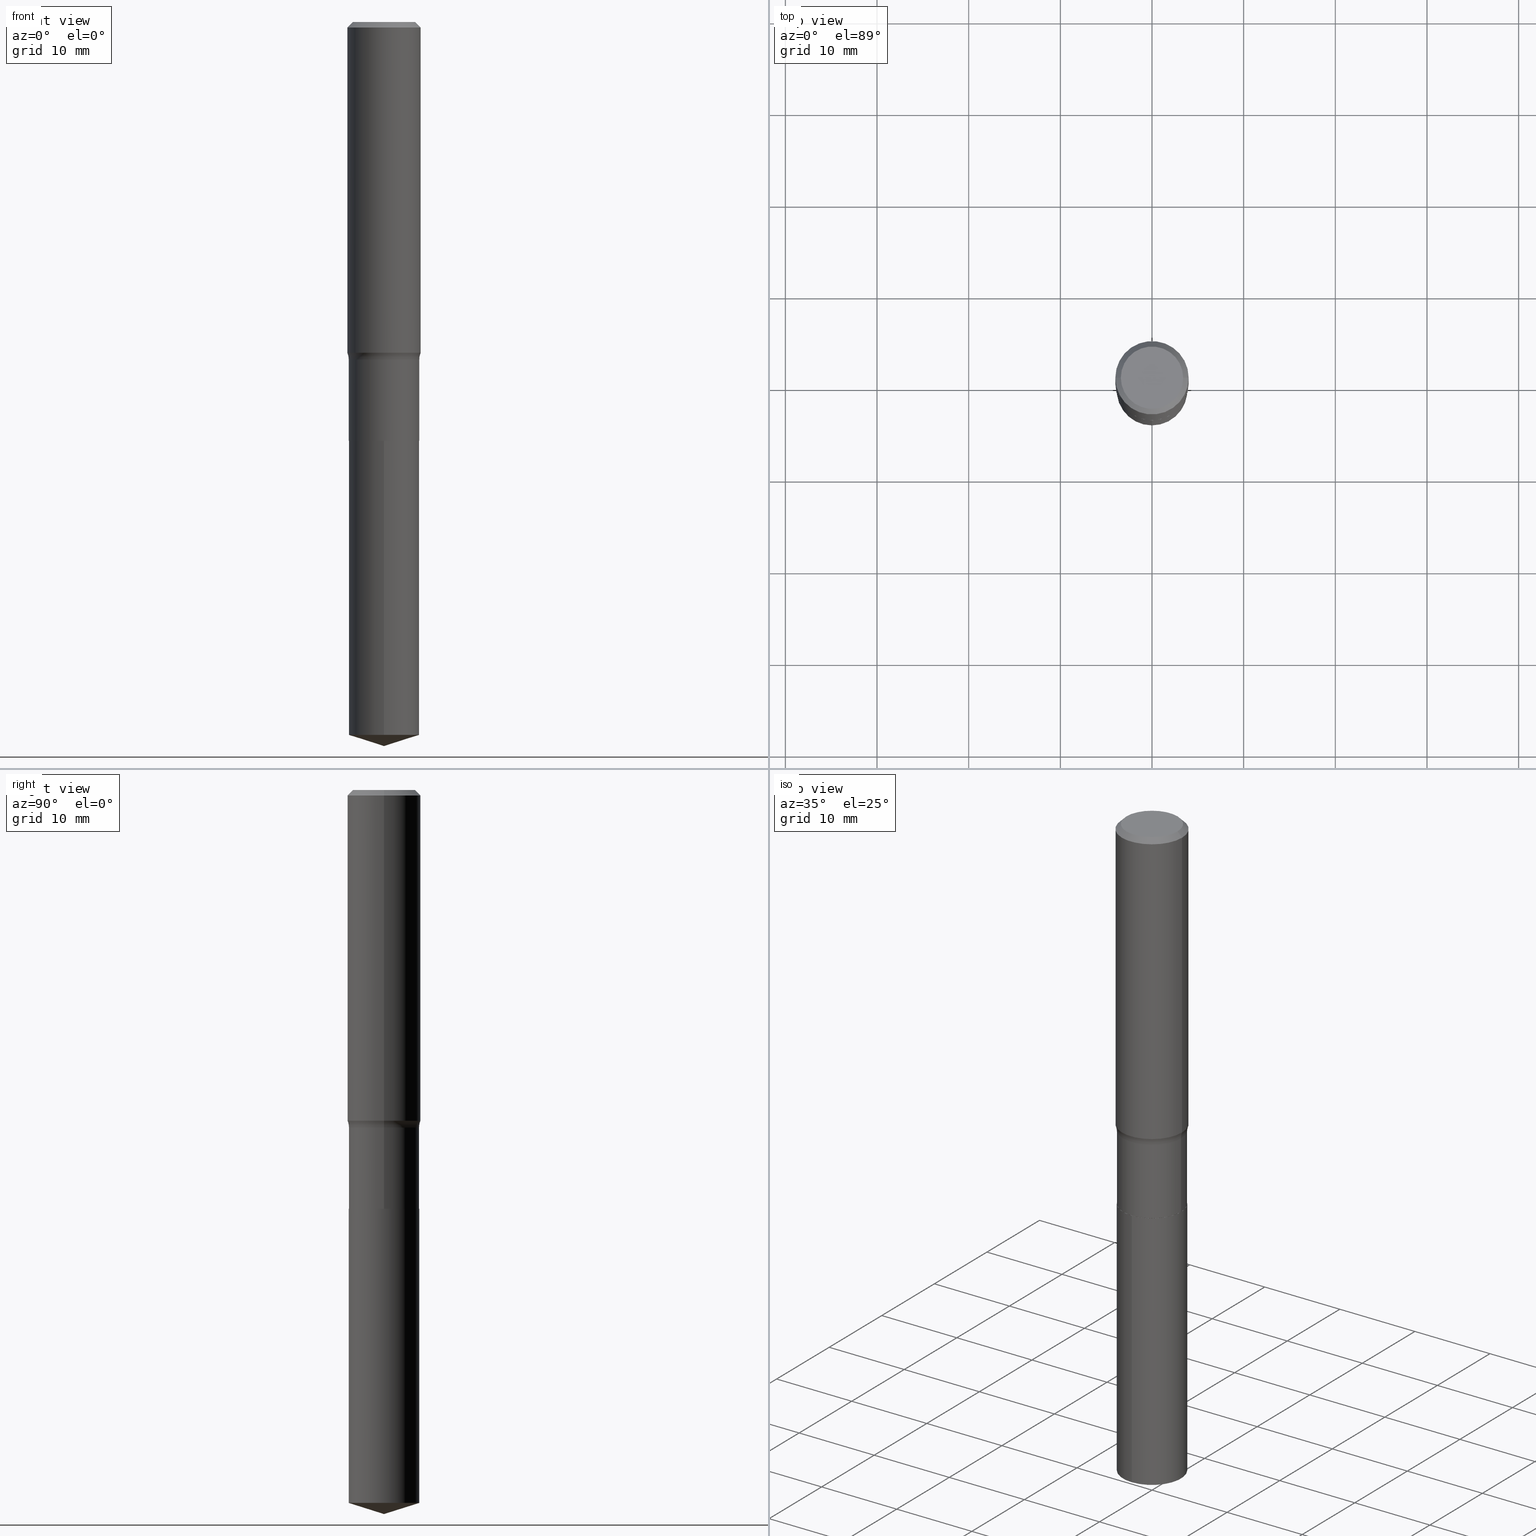
[diagram: canonical four-view strip — front | top / right | iso, engineering-drawing reading convention]
A machine part, canonical four-view strip (front | top / right | iso — engineering-drawing reading convention). The complete STEP part file that produces these views, byte-faithful:
ISO-10303-21;
HEADER;
FILE_DESCRIPTION (( 'STEP AP203' ),
    '1' );
FILE_NAME ('63765.STEP',
    '2024-04-19T15:08:38',
    ( '' ),
    ( '' ),
    'SwSTEP 2.0',
    'SolidWorks 2023',
    '' );
FILE_SCHEMA (( 'CONFIG_CONTROL_DESIGN' ));
ENDSEC;

DATA;
#1 =( NAMED_UNIT ( * ) PLANE_ANGLE_UNIT ( ) SI_UNIT ( $, .RADIAN. ) );
#2 = PERSON_AND_ORGANIZATION_ROLE ( 'creator' ) ;
#3 = AXIS2_PLACEMENT_3D ( 'NONE', #71, #371, #33 ) ;
#4 = ORIENTED_EDGE ( 'NONE', *, *, #314, .T. ) ;
#5 = APPROVAL_STATUS ( 'not_yet_approved' ) ;
#6 = DIRECTION ( 'NONE',  ( 0.7071067811865451302, -7.319954787623248157E-15, -0.7071067811865499042 ) ) ;
#7 = SECURITY_CLASSIFICATION_LEVEL ( 'unclassified' ) ;
#8 = CARTESIAN_POINT ( 'NONE',  ( 1.076827516044506507E-15, 0.1515499999999936898, -1.799100000000000588 ) ) ;
#9 = DATE_TIME_ROLE ( 'classification_date' ) ;
#10 = CARTESIAN_POINT ( 'NONE',  ( 0.1575000000000000011, -1.163014681279185964E-15, -0.02362500000000014588 ) ) ;
#11 = AXIS2_PLACEMENT_3D ( 'NONE', #79, #376, #325 ) ;
#12 = APPROVAL_PERSON_ORGANIZATION ( #123, #61, #238 ) ;
#13 = APPROVAL_ROLE ( '' ) ;
#14 = VERTEX_POINT ( 'NONE', #303 ) ;
#15 = FACE_OUTER_BOUND ( 'NONE', #492, .T. ) ;
#16 = EDGE_CURVE ( 'NONE', #251, #132, #208, .T. ) ;
#17 = FACE_OUTER_BOUND ( 'NONE', #267, .T. ) ;
#18 = FACE_OUTER_BOUND ( 'NONE', #135, .T. ) ;
#19 = CIRCLE ( 'NONE', #160, 0.07799999999999999989 ) ;
#20 = EDGE_CURVE ( 'NONE', #58, #134, #199, .T. ) ;
#21 = ORIENTED_EDGE ( 'NONE', *, *, #354, .F. ) ;
#22 = AXIS2_PLACEMENT_3D ( 'NONE', #220, #488, #327 ) ;
#23 = EDGE_CURVE ( 'NONE', #139, #328, #340, .T. ) ;
#24 = ORIENTED_EDGE ( 'NONE', *, *, #170, .T. ) ;
#25 = DIRECTION ( 'NONE',  ( 1.000000000000000000, -6.982962677686265922E-15, 0.000000000000000000 ) ) ;
#26 = DIRECTION ( 'NONE',  ( -2.445468806185136597E-29, 3.491481338843145583E-15, 1.000000000000000000 ) ) ;
#27 = VERTEX_POINT ( 'NONE', #392 ) ;
#28 = ORIENTED_EDGE ( 'NONE', *, *, #16, .F. ) ;
#29 = ORIENTED_EDGE ( 'NONE', *, *, #314, .F. ) ;
#30 = DIRECTION ( 'NONE',  ( -6.982962677686266711E-15, -1.000000000000000000, 3.491481338843145583E-15 ) ) ;
#31 = CARTESIAN_POINT ( 'NONE',  ( 4.398420194804586591E-29, -6.279778336043281129E-15, -1.798599999999999977 ) ) ;
#32 = CC_DESIGN_PERSON_AND_ORGANIZATION_ASSIGNMENT ( #417, #197, ( #68 ) ) ;
#33 = DIRECTION ( 'NONE',  ( 1.000000000000000000, -6.982962677686267499E-15, 4.876176775795936353E-29 ) ) ;
#34 = DIRECTION ( 'NONE',  ( -6.982962677686266711E-15, -1.000000000000000000, 3.500519750498737170E-15 ) ) ;
#35 = EDGE_CURVE ( 'NONE', #153, #58, #457, .T. ) ;
#36 = EDGE_CURVE ( 'NONE', #386, #27, #37, .T. ) ;
#37 = CIRCLE ( 'NONE', #159, 0.07799999999999999989 ) ;
#38 = ADVANCED_FACE ( 'NONE', ( #311 ), #280, .T. ) ;
#39 = DIRECTION ( 'NONE',  ( 1.000000000000000000, -6.982962677686265922E-15, 4.876176775795935793E-29 ) ) ;
#40 = FACE_OUTER_BOUND ( 'NONE', #173, .T. ) ;
#41 = ORIENTED_EDGE ( 'NONE', *, *, #255, .F. ) ;
#42 = APPROVAL_STATUS ( 'not_yet_approved' ) ;
#43 = ORIENTED_EDGE ( 'NONE', *, *, #170, .F. ) ;
#44 = DIRECTION ( 'NONE',  ( 0.000000000000000000, 0.000000000000000000, 1.000000000000000000 ) ) ;
#45 = VECTOR ( 'NONE', #161, 39.37007874015748143 ) ;
#46 = EDGE_LOOP ( 'NONE', ( #489, #4, #290, #41 ) ) ;
#47 = DIRECTION ( 'NONE',  ( -2.445468806185136597E-29, 3.491481338843145583E-15, 1.000000000000000000 ) ) ;
#48 = COORDINATED_UNIVERSAL_TIME_OFFSET ( 5, 0, .BEHIND. ) ;
#49 = DIRECTION ( 'NONE',  ( 0.7071067811864267805, -2.468850131080992517E-15, 0.7071067811866682540 ) ) ;
#50 = EDGE_CURVE ( 'NONE', #286, #58, #90, .T. ) ;
#51 = APPROVAL_DATE_TIME ( #397, #367 ) ;
#52 = ORIENTED_EDGE ( 'NONE', *, *, #342, .T. ) ;
#53 = VECTOR ( 'NONE', #459, 39.37007874015748143 ) ;
#54 = CC_DESIGN_DATE_AND_TIME_ASSIGNMENT ( #276, #9, ( #352 ) ) ;
#55 = ORIENTED_EDGE ( 'NONE', *, *, #225, .F. ) ;
#56 = VERTEX_POINT ( 'NONE', #117 ) ;
#57 = CARTESIAN_POINT ( 'NONE',  ( 5.777420054612421104E-31, -8.248624663016984002E-17, -0.02362500000000014588 ) ) ;
#58 = VERTEX_POINT ( 'NONE', #232 ) ;
#59 = ADVANCED_FACE ( 'NONE', ( #15 ), #405, .F. ) ;
#60 = DIRECTION ( 'NONE',  ( -2.445468806185136597E-29, 3.491481338843145583E-15, 1.000000000000000000 ) ) ;
#61 = APPROVAL ( #5, 'UNSPECIFIED' ) ;
#62 = CARTESIAN_POINT ( 'NONE',  ( 3.474082587019340908E-29, -4.960069206975464196E-15, -1.420620282799195833 ) ) ;
#63 = CLOSED_SHELL ( 'NONE', ( #169, #350, #258, #247, #382, #442, #59, #241, #103, #347, #309, #260 ) ) ;
#64 = ORIENTED_EDGE ( 'NONE', *, *, #255, .T. ) ;
#65 = PLANE ( 'NONE',  #264 ) ;
#66 = CARTESIAN_POINT ( 'NONE',  ( 4.399642929207679953E-29, -6.281524076712703421E-15, -1.799100000000000144 ) ) ;
#67 = LINE ( 'NONE', #448, #406 ) ;
#68 = PRODUCT_DEFINITION ( 'UNKNOWN', '', #415, #274 ) ;
#69 = AXIS2_PLACEMENT_3D ( 'NONE', #145, #295, #298 ) ;
#70 = MANIFOLD_SOLID_BREP ( 'Body-Move/Copy2[1]', #411 ) ;
#71 = CARTESIAN_POINT ( 'NONE',  ( 0.000000000000000000, 0.000000000000000000, 0.000000000000000000 ) ) ;
#72 = MANIFOLD_SOLID_BREP ( 'Body-Move/Copy2[2]', #63 ) ;
#73 = ORIENTED_EDGE ( 'NONE', *, *, #144, .F. ) ;
#74 = LINE ( 'NONE', #404, #128 ) ;
#75 = EDGE_CURVE ( 'NONE', #386, #134, #198, .T. ) ;
#76 = FACE_OUTER_BOUND ( 'NONE', #316, .T. ) ;
#77 = CIRCLE ( 'NONE', #22, 0.1515499999999999903 ) ;
#78 = LOCAL_TIME ( 11, 8, 38.00000000000000000, #149 ) ;
#79 = CARTESIAN_POINT ( 'NONE',  ( -5.014852121625167883E-47, 7.159879756154482429E-33, 2.050671065172242981E-18 ) ) ;
#80 = VERTEX_POINT ( 'NONE', #113 ) ;
#81 = CARTESIAN_POINT ( 'NONE',  ( 7.605921269896744962E-29, -1.085917272384048373E-14, -3.110199999999999854 ) ) ;
#82 = DATE_TIME_ROLE ( 'creation_date' ) ;
#83 = CARTESIAN_POINT ( 'NONE',  ( -0.2295499999999999485, -3.433342832054672810E-15, -1.450499999999999901 ) ) ;
#84 = EDGE_CURVE ( 'NONE', #80, #27, #393, .T. ) ;
#85 = AXIS2_PLACEMENT_3D ( 'NONE', #345, #44, #119 ) ;
#86 = DIRECTION ( 'NONE',  ( 1.000000000000000000, -6.982962677686265922E-15, 0.000000000000000000 ) ) ;
#87 = CALENDAR_DATE ( 2024, 19, 4 ) ;
#88 = DIRECTION ( 'NONE',  ( -1.000000000000000000, 7.105427357601005014E-15, 0.000000000000000000 ) ) ;
#89 = EDGE_CURVE ( 'NONE', #286, #386, #118, .T. ) ;
#90 = LINE ( 'NONE', #236, #384 ) ;
#91 = CARTESIAN_POINT ( 'NONE',  ( 0.1338749999999999940, -1.040731925365424925E-15, 4.101342130351393887E-18 ) ) ;
#92 = COORDINATED_UNIVERSAL_TIME_OFFSET ( 5, 0, .BEHIND. ) ;
#93 = CARTESIAN_POINT ( 'NONE',  ( 7.605752278704311701E-29, -1.085941262519473486E-14, -3.110199999999999854 ) ) ;
#94 = DIRECTION ( 'NONE',  ( 1.000000000000000000, -6.982962677686265133E-15, 0.000000000000000000 ) ) ;
#95 = ORIENTED_EDGE ( 'NONE', *, *, #416, .T. ) ;
#96 = DIRECTION ( 'NONE',  ( -2.445468806185136597E-29, 3.491481338843145583E-15, 1.000000000000000000 ) ) ;
#97 = VECTOR ( 'NONE', #239, 39.37007874015748854 ) ;
#98 = EDGE_LOOP ( 'NONE', ( #477, #167, #95, #185 ) ) ;
#99 = VERTEX_POINT ( 'NONE', #462 ) ;
#100 = AXIS2_PLACEMENT_3D ( 'NONE', #445, #379, #184 ) ;
#101 = PERSON ( 'UNSPECIFIED', 'UNSPECIFIED', 'UNSPECIFIED', ('UNSPECIFIED'), ('UNSPECIFIED'), ('UNSPECIFIED') ) ;
#102 = FACE_OUTER_BOUND ( 'NONE', #422, .T. ) ;
#103 = ADVANCED_FACE ( 'NONE', ( #383 ), #175, .T. ) ;
#104 = FACE_OUTER_BOUND ( 'NONE', #363, .T. ) ;
#105 = DIRECTION ( 'NONE',  ( -1.000000000000000000, 6.982962677686265922E-15, 0.000000000000000000 ) ) ;
#106 = ORIENTED_EDGE ( 'NONE', *, *, #89, .F. ) ;
#107 = DIRECTION ( 'NONE',  ( -6.982962677686265922E-15, -1.000000000000000000, 3.605210153301568306E-15 ) ) ;
#108 = EDGE_LOOP ( 'NONE', ( #29, #440, #64, #212 ) ) ;
#109 = CARTESIAN_POINT ( 'NONE',  ( 7.605752278704311701E-29, -1.085941262519473170E-14, -3.110199999999999854 ) ) ;
#110 = CARTESIAN_POINT ( 'NONE',  ( -1.058267993803309547E-15, -0.1515500000000062630, -1.799099999999999477 ) ) ;
#111 = AXIS2_PLACEMENT_3D ( 'NONE', #450, #491, #483 ) ;
#112 = COORDINATED_UNIVERSAL_TIME_OFFSET ( 5, 0, .BEHIND. ) ;
#113 = CARTESIAN_POINT ( 'NONE',  ( 0.1515499999999999625, -6.122661675795335552E-15, -1.450499999999999901 ) ) ;
#114 = ORIENTED_EDGE ( 'NONE', *, *, #231, .T. ) ;
#115 = DIRECTION ( 'NONE',  ( -2.445468806185136597E-29, 3.491481338843145583E-15, 1.000000000000000000 ) ) ;
#116 = PERSON_AND_ORGANIZATION_ROLE ( 'design_supplier' ) ;
#117 = CARTESIAN_POINT ( 'NONE',  ( -0.1338749999999999940, 9.760872517903331886E-16, 4.101342130337804525E-18 ) ) ;
#118 = CIRCLE ( 'NONE', #368, 0.1575000000000001954 ) ;
#119 = DIRECTION ( 'NONE',  ( 1.000000000000000000, 0.000000000000000000, 0.000000000000000000 ) ) ;
#120 = APPROVAL_PERSON_ORGANIZATION ( #195, #233, #343 ) ;
#121 = CARTESIAN_POINT ( 'NONE',  ( 5.777420054612421104E-31, -8.248624663016984002E-17, -0.02362500000000014588 ) ) ;
#122 = EDGE_CURVE ( 'NONE', #56, #153, #452, .T. ) ;
#123 = PERSON_AND_ORGANIZATION ( #101, #235 ) ;
#124 = CARTESIAN_POINT ( 'NONE',  ( 0.1510499999999999898, -7.336300589177213743E-15, -1.799100000000000144 ) ) ;
#125 = CYLINDRICAL_SURFACE ( 'NONE', #308, 0.1575000000000000844 ) ;
#126 = EDGE_LOOP ( 'NONE', ( #473, #414, #129, #320 ) ) ;
#127 = DIRECTION ( 'NONE',  ( 1.000000000000000000, -6.982962677686266711E-15, 4.876170806578254279E-29 ) ) ;
#128 = VECTOR ( 'NONE', #256, 39.37007874015748143 ) ;
#129 = ORIENTED_EDGE ( 'NONE', *, *, #20, .F. ) ;
#130 = PERSON_AND_ORGANIZATION ( #101, #235 ) ;
#131 = CARTESIAN_POINT ( 'NONE',  ( 0.1515499999999999625, -1.058267993803353526E-15, 7.389845903718739567E-30 ) ) ;
#132 = VERTEX_POINT ( 'NONE', #8 ) ;
#133 = CYLINDRICAL_SURFACE ( 'NONE', #460, 0.1575000000000000844 ) ;
#134 = VERTEX_POINT ( 'NONE', #390 ) ;
#135 = EDGE_LOOP ( 'NONE', ( #365, #334, #177, #43 ) ) ;
#136 = FACE_OUTER_BOUND ( 'NONE', #219, .T. ) ;
#137 = CIRCLE ( 'NONE', #100, 0.1515499999999999903 ) ;
#138 = LOCAL_TIME ( 11, 8, 38.00000000000000000, #48 ) ;
#139 = VERTEX_POINT ( 'NONE', #124 ) ;
#140 = EDGE_CURVE ( 'NONE', #246, #99, #277, .T. ) ;
#141 = DIRECTION ( 'NONE',  ( -2.445422248956437479E-29, 3.491548011444515616E-15, 1.000000000000000000 ) ) ;
#142 = CARTESIAN_POINT ( 'NONE',  ( 7.488985128861653082E-29, -1.069245418028746689E-14, -3.062416468545390291 ) ) ;
#143 = EDGE_CURVE ( 'NONE', #153, #56, #431, .T. ) ;
#144 = EDGE_CURVE ( 'NONE', #56, #134, #366, .T. ) ;
#145 = CARTESIAN_POINT ( 'NONE',  ( 3.547152503371540530E-29, -5.064393681991982224E-15, -1.450499999999999901 ) ) ;
#146 = CYLINDRICAL_SURFACE ( 'NONE', #3, 0.1515499999999999625 ) ;
#147 = VERTEX_POINT ( 'NONE', #288 ) ;
#148 = CYLINDRICAL_SURFACE ( 'NONE', #152, 0.1515499999999999903 ) ;
#149 = COORDINATED_UNIVERSAL_TIME_OFFSET ( 5, 0, .BEHIND. ) ;
#150 = ORIENTED_EDGE ( 'NONE', *, *, #143, .T. ) ;
#151 = ADVANCED_FACE ( 'NONE', ( #17 ), #474, .F. ) ;
#152 = AXIS2_PLACEMENT_3D ( 'NONE', #412, #254, #293 ) ;
#153 = VERTEX_POINT ( 'NONE', #91 ) ;
#154 = APPROVAL_DATE_TIME ( #420, #233 ) ;
#155 = CARTESIAN_POINT ( 'NONE',  ( 4.399642929207679392E-29, -6.281524076712702632E-15, -1.799099999999999921 ) ) ;
#156 = PERSON_AND_ORGANIZATION ( #101, #235 ) ;
#157 = EDGE_CURVE ( 'NONE', #286, #80, #19, .T. ) ;
#158 = DIRECTION ( 'NONE',  ( 7.105427357601001859E-15, 1.000000000000000000, -3.491481338843145583E-15 ) ) ;
#159 = AXIS2_PLACEMENT_3D ( 'NONE', #83, #158, #88 ) ;
#160 = AXIS2_PLACEMENT_3D ( 'NONE', #433, #30, #364 ) ;
#161 = DIRECTION ( 'NONE',  ( -0.7071067811864267805, 7.493145998869918709E-15, 0.7071067811866682540 ) ) ;
#162 = CC_DESIGN_APPROVAL ( #233, ( #68 ) ) ;
#163 = SHAPE_DEFINITION_REPRESENTATION ( #463, #243 ) ;
#164 = CARTESIAN_POINT ( 'NONE',  ( 3.547152503371540530E-29, -5.064393681991982224E-15, -1.450499999999999901 ) ) ;
#165 = DIRECTION ( 'NONE',  ( -2.445468806185136597E-29, 3.491481338843145583E-15, 1.000000000000000000 ) ) ;
#166 = LINE ( 'NONE', #131, #400 ) ;
#167 = ORIENTED_EDGE ( 'NONE', *, *, #259, .T. ) ;
#168 = FACE_OUTER_BOUND ( 'NONE', #317, .T. ) ;
#169 = ADVANCED_FACE ( 'NONE', ( #136 ), #487, .T. ) ;
#170 = EDGE_CURVE ( 'NONE', #134, #58, #301, .T. ) ;
#171 = DIRECTION ( 'NONE',  ( 1.000000000000000000, -6.982962677686265922E-15, 0.000000000000000000 ) ) ;
#172 = ORIENTED_EDGE ( 'NONE', *, *, #35, .F. ) ;
#173 = EDGE_LOOP ( 'NONE', ( #484, #216, #186 ) ) ;
#174 = CARTESIAN_POINT ( 'NONE',  ( -1.058267993803309547E-15, -0.1515500000000062630, -1.799099999999999477 ) ) ;
#175 = CONICAL_SURFACE ( 'NONE', #307, 0.1575000000000000011, 0.7853981633974449483 ) ;
#176 = AXIS2_PLACEMENT_3D ( 'NONE', #31, #407, #485 ) ;
#177 = ORIENTED_EDGE ( 'NONE', *, *, #50, .T. ) ;
#178 = DIRECTION ( 'NONE',  ( 2.445468806185136597E-29, -3.491481338843145583E-15, -1.000000000000000000 ) ) ;
#179 = ORIENTED_EDGE ( 'NONE', *, *, #23, .T. ) ;
#180 = CARTESIAN_POINT ( 'NONE',  ( 0.1515499999999999903, -7.338046329846634457E-15, -1.798599999999999977 ) ) ;
#181 = DIRECTION ( 'NONE',  ( -2.445422248956437479E-29, 3.491548011444515616E-15, 1.000000000000000000 ) ) ;
#182 = AXIS2_PLACEMENT_3D ( 'NONE', #121, #115, #381 ) ;
#183 = VECTOR ( 'NONE', #329, 39.37007874015748143 ) ;
#184 = DIRECTION ( 'NONE',  ( -6.982962677686265922E-15, -1.000000000000000000, 3.605210153301568306E-15 ) ) ;
#185 = ORIENTED_EDGE ( 'NONE', *, *, #342, .F. ) ;
#186 = ORIENTED_EDGE ( 'NONE', *, *, #259, .F. ) ;
#187 = ORIENTED_EDGE ( 'NONE', *, *, #466, .T. ) ;
#188 = CALENDAR_DATE ( 2024, 19, 4 ) ;
#189 = CARTESIAN_POINT ( 'NONE',  ( 0.1510499999999999898, -7.336300589177213743E-15, -1.799100000000000144 ) ) ;
#190 = AXIS2_PLACEMENT_3D ( 'NONE', #418, #196, #346 ) ;
#191 = AXIS2_PLACEMENT_3D ( 'NONE', #476, #96, #249 ) ;
#192 = APPLICATION_PROTOCOL_DEFINITION ( 'international standard', 'config_control_design', 1994, #362 ) ;
#193 = CARTESIAN_POINT ( 'NONE',  ( -0.1575000000000000844, 1.119104808822158392E-15, -7.747322767151481189E-30 ) ) ;
#194 = CC_DESIGN_PERSON_AND_ORGANIZATION_ASSIGNMENT ( #265, #2, ( #415 ) ) ;
#195 = PERSON_AND_ORGANIZATION ( #101, #235 ) ;
#196 = DIRECTION ( 'NONE',  ( -2.445468806185136597E-29, 3.491481338843145583E-15, 1.000000000000000000 ) ) ;
#197 = PERSON_AND_ORGANIZATION_ROLE ( 'creator' ) ;
#198 = LINE ( 'NONE', #193, #53 ) ;
#199 = CIRCLE ( 'NONE', #182, 0.1575000000000000011 ) ;
#200 = AXIS2_PLACEMENT_3D ( 'NONE', #62, #60, #171 ) ;
#201 = APPROVAL_PERSON_ORGANIZATION ( #130, #367, #13 ) ;
#202 = CARTESIAN_POINT ( 'NONE',  ( 3.474082587019340908E-29, -4.960069206975464196E-15, -1.420620282799195833 ) ) ;
#203 = ORIENTED_EDGE ( 'NONE', *, *, #437, .T. ) ;
#204 = DIRECTION ( 'NONE',  ( -2.445468806185136597E-29, 3.491481338843145583E-15, 1.000000000000000000 ) ) ;
#205 = PRODUCT_RELATED_PRODUCT_CATEGORY ( 'detail', '', ( #472 ) ) ;
#206 = CARTESIAN_POINT ( 'NONE',  ( 4.399642929207679953E-29, -6.281524076712703421E-15, -1.799100000000000144 ) ) ;
#207 = ORIENTED_EDGE ( 'NONE', *, *, #490, .T. ) ;
#208 = CIRCLE ( 'NONE', #375, 0.1515499999999999903 ) ;
#209 = FACE_OUTER_BOUND ( 'NONE', #126, .T. ) ;
#210 = EDGE_CURVE ( 'NONE', #358, #139, #333, .T. ) ;
#211 = CARTESIAN_POINT ( 'NONE',  ( 2.127525226973809493E-29, -9.535325947220068579E-15, -1.799099999999999921 ) ) ;
#212 = ORIENTED_EDGE ( 'NONE', *, *, #466, .F. ) ;
#213 = DIRECTION ( 'NONE',  ( -2.438088387897960049E-29, 3.491481338843145188E-15, 1.000000000000000000 ) ) ;
#214 = EDGE_LOOP ( 'NONE', ( #361, #203, #28, #221 ) ) ;
#215 = PLANE ( 'NONE',  #11 ) ;
#216 = ORIENTED_EDGE ( 'NONE', *, *, #482, .T. ) ;
#217 = CIRCLE ( 'NONE', #69, 0.1515499999999999625 ) ;
#218 = FACE_OUTER_BOUND ( 'NONE', #214, .T. ) ;
#219 = EDGE_LOOP ( 'NONE', ( #114, #207, #435, #285 ) ) ;
#220 = CARTESIAN_POINT ( 'NONE',  ( 4.398420194804586591E-29, -6.279778336043281129E-15, -1.798599999999999977 ) ) ;
#221 = ORIENTED_EDGE ( 'NONE', *, *, #416, .F. ) ;
#222 = CARTESIAN_POINT ( 'NONE',  ( -8.867063045453348225E-28, 1.266032274610932549E-13, 36.25987874015748247 ) ) ;
#223 = VECTOR ( 'NONE', #318, 39.37007874015748143 ) ;
#224 = AXIS2_PLACEMENT_3D ( 'NONE', #471, #252, #284 ) ;
#225 = EDGE_CURVE ( 'NONE', #386, #286, #443, .T. ) ;
#226 = LOCAL_TIME ( 11, 8, 38.00000000000000000, #339 ) ;
#227 = DIRECTION ( 'NONE',  ( -2.445468806185136877E-29, 3.491481338843145188E-15, 1.000000000000000000 ) ) ;
#228 = ORIENTED_EDGE ( 'NONE', *, *, #35, .T. ) ;
#229 = ORIENTED_EDGE ( 'NONE', *, *, #122, .F. ) ;
#230 = PERSON_AND_ORGANIZATION ( #101, #235 ) ;
#231 = EDGE_CURVE ( 'NONE', #139, #358, #250, .T. ) ;
#232 = CARTESIAN_POINT ( 'NONE',  ( 0.1575000000000000011, -1.182302868365756679E-15, -0.02362500000000014588 ) ) ;
#233 = APPROVAL ( #42, 'UNSPECIFIED' ) ;
#234 = AXIS2_PLACEMENT_3D ( 'NONE', #355, #395, #430 ) ;
#235 = ORGANIZATION ( 'UNSPECIFIED', 'UNSPECIFIED', '' ) ;
#236 = CARTESIAN_POINT ( 'NONE',  ( 0.1575000000000000844, -1.099816621735587677E-15, 7.679978421878603638E-30 ) ) ;
#237 = CARTESIAN_POINT ( 'NONE',  ( 3.547152503371540530E-29, -5.064393681991982224E-15, -1.450499999999999901 ) ) ;
#238 = APPROVAL_ROLE ( '' ) ;
#239 = DIRECTION ( 'NONE',  ( 6.776566513254251038E-15, 0.9537169507482280428, 0.3007057995042697329 ) ) ;
#240 = AXIS2_PLACEMENT_3D ( 'NONE', #313, #357, #315 ) ;
#241 = ADVANCED_FACE ( 'NONE', ( #18 ), #133, .T. ) ;
#242 = CARTESIAN_POINT ( 'NONE',  ( -0.1575000000000000011, 1.017330375105417098E-15, -0.02362500000000014588 ) ) ;
#243 = ADVANCED_BREP_SHAPE_REPRESENTATION ( '63765', ( #70, #72, #85 ), #447 ) ;
#244 = FACE_OUTER_BOUND ( 'NONE', #429, .T. ) ;
#245 = DIRECTION ( 'NONE',  ( -2.445468806185136597E-29, 3.491481338843145583E-15, 1.000000000000000000 ) ) ;
#246 = VERTEX_POINT ( 'NONE', #93 ) ;
#247 = ADVANCED_FACE ( 'NONE', ( #244 ), #385, .F. ) ;
#248 = CALENDAR_DATE ( 2024, 19, 4 ) ;
#249 = DIRECTION ( 'NONE',  ( 1.000000000000000000, -6.982962677686265133E-15, 0.000000000000000000 ) ) ;
#250 = CIRCLE ( 'NONE', #287, 0.1510499999999999898 ) ;
#251 = VERTEX_POINT ( 'NONE', #174 ) ;
#252 = DIRECTION ( 'NONE',  ( -2.445468806185136597E-29, 3.491481338843145583E-15, 1.000000000000000000 ) ) ;
#253 = LINE ( 'NONE', #110, #183 ) ;
#254 = DIRECTION ( 'NONE',  ( -2.445422248956437479E-29, 3.491548011444515616E-15, 1.000000000000000000 ) ) ;
#255 = EDGE_CURVE ( 'NONE', #328, #80, #166, .T. ) ;
#256 = DIRECTION ( 'NONE',  ( -2.445422248956437198E-29, 3.491548011444515221E-15, 1.000000000000000000 ) ) ;
#257 = DIRECTION ( 'NONE',  ( -6.659769872151625778E-15, -0.9537169507482258224, 0.3007057995042763388 ) ) ;
#258 = ADVANCED_FACE ( 'NONE', ( #209 ), #125, .T. ) ;
#259 = EDGE_CURVE ( 'NONE', #99, #147, #324, .T. ) ;
#260 = ADVANCED_FACE ( 'NONE', ( #168 ), #273, .T. ) ;
#261 = DIRECTION ( 'NONE',  ( -6.982962677686265922E-15, -1.000000000000000000, 3.605210153301569095E-15 ) ) ;
#262 = ORIENTED_EDGE ( 'NONE', *, *, #157, .F. ) ;
#263 = VECTOR ( 'NONE', #6, 39.37007874015748143 ) ;
#264 = AXIS2_PLACEMENT_3D ( 'NONE', #211, #213, #39 ) ;
#265 = PERSON_AND_ORGANIZATION ( #101, #235 ) ;
#266 = DIRECTION ( 'NONE',  ( -1.000000000000000000, 6.982962677686265922E-15, 0.000000000000000000 ) ) ;
#267 = EDGE_LOOP ( 'NONE', ( #475, #52 ) ) ;
#268 = PERSON_AND_ORGANIZATION ( #101, #235 ) ;
#269 = DIRECTION ( 'NONE',  ( -2.445422248956437479E-29, 3.491548011444515616E-15, 1.000000000000000000 ) ) ;
#270 = EDGE_LOOP ( 'NONE', ( #172, #229, #321, #24 ) ) ;
#271 = CARTESIAN_POINT ( 'NONE',  ( -0.1510499999999999898, -5.208249274347071965E-15, -1.799100000000000144 ) ) ;
#272 = DIRECTION ( 'NONE',  ( -2.445468806185136597E-29, 3.491481338843145583E-15, 1.000000000000000000 ) ) ;
#273 = CONICAL_SURFACE ( 'NONE', #191, 0.1510499999999999898, 0.7853981633972775267 ) ;
#274 = DESIGN_CONTEXT ( 'detailed design', #362, 'design' ) ;
#275 = DIRECTION ( 'NONE',  ( -2.445422248956437479E-29, 3.491548011444515616E-15, 1.000000000000000000 ) ) ;
#276 = DATE_AND_TIME ( #349, #138 ) ;
#277 = LINE ( 'NONE', #81, #97 ) ;
#278 = CC_DESIGN_SECURITY_CLASSIFICATION ( #352, ( #415 ) ) ;
#279 = DIRECTION ( 'NONE',  ( 1.000000000000000000, -6.982962677686267499E-15, 4.876176775795936353E-29 ) ) ;
#280 = CONICAL_SURFACE ( 'NONE', #332, 124.8659371009138965, 1.265363707695889017 ) ;
#281 = DIRECTION ( 'NONE',  ( -2.445468806185136597E-29, 3.491481338843145583E-15, 1.000000000000000000 ) ) ;
#282 = CARTESIAN_POINT ( 'NONE',  ( 0.000000000000000000, 0.000000000000000000, 0.000000000000000000 ) ) ;
#283 = EDGE_LOOP ( 'NONE', ( #356, #436, #21 ) ) ;
#284 = DIRECTION ( 'NONE',  ( 1.000000000000000000, -6.982962677686267499E-15, 4.883557194083112901E-29 ) ) ;
#285 = ORIENTED_EDGE ( 'NONE', *, *, #23, .F. ) ;
#286 = VERTEX_POINT ( 'NONE', #401 ) ;
#287 = AXIS2_PLACEMENT_3D ( 'NONE', #206, #281, #94 ) ;
#288 = CARTESIAN_POINT ( 'NONE',  ( -1.058267993803278387E-15, -0.1515500000000106484, -3.062416468545389403 ) ) ;
#289 = CC_DESIGN_APPROVAL ( #61, ( #415 ) ) ;
#290 = ORIENTED_EDGE ( 'NONE', *, *, #84, .F. ) ;
#291 = CARTESIAN_POINT ( 'NONE',  ( -0.1510499999999999898, -5.205600047172960764E-15, -1.799100000000000144 ) ) ;
#292 = CC_DESIGN_PERSON_AND_ORGANIZATION_ASSIGNMENT ( #230, #116, ( #415 ) ) ;
#293 = DIRECTION ( 'NONE',  ( -6.982962677686265922E-15, -1.000000000000000000, 3.605210153301568306E-15 ) ) ;
#294 = ORIENTED_EDGE ( 'NONE', *, *, #84, .T. ) ;
#295 = DIRECTION ( 'NONE',  ( -2.445468806185136597E-29, 3.491481338843145583E-15, 1.000000000000000000 ) ) ;
#296 = CIRCLE ( 'NONE', #454, 0.1515499999999999625 ) ;
#297 = ORIENTED_EDGE ( 'NONE', *, *, #36, .T. ) ;
#298 = DIRECTION ( 'NONE',  ( 1.000000000000000000, -6.982962677686263555E-15, 0.000000000000000000 ) ) ;
#299 = FACE_OUTER_BOUND ( 'NONE', #46, .T. ) ;
#300 = APPLICATION_PROTOCOL_DEFINITION ( 'international standard', 'config_control_design', 1994, #322 ) ;
#301 = CIRCLE ( 'NONE', #479, 0.1575000000000000011 ) ;
#302 = MECHANICAL_CONTEXT ( 'NONE', #322, 'mechanical' ) ;
#303 = CARTESIAN_POINT ( 'NONE',  ( -0.1515499999999999903, -4.595258492973200111E-15, -1.798599999999999977 ) ) ;
#304 = APPROVAL_DATE_TIME ( #391, #61 ) ;
#305 = CARTESIAN_POINT ( 'NONE',  ( -8.867063045453348225E-28, 1.266032274610932549E-13, 36.25987874015748247 ) ) ;
#306 = CARTESIAN_POINT ( 'NONE',  ( 5.777420054612421104E-31, -8.248624663016984002E-17, -0.02362500000000014588 ) ) ;
#307 = AXIS2_PLACEMENT_3D ( 'NONE', #306, #344, #266 ) ;
#308 = AXIS2_PLACEMENT_3D ( 'NONE', #282, #245, #360 ) ;
#309 = ADVANCED_FACE ( 'NONE', ( #102 ), #65, .F. ) ;
#310 = DIRECTION ( 'NONE',  ( -2.445468806185136597E-29, 3.491481338843145583E-15, 1.000000000000000000 ) ) ;
#311 = FACE_OUTER_BOUND ( 'NONE', #283, .T. ) ;
#312 = ORIENTED_EDGE ( 'NONE', *, *, #210, .T. ) ;
#313 = CARTESIAN_POINT ( 'NONE',  ( 4.399642929207679953E-29, -6.281524076712703421E-15, -1.799100000000000144 ) ) ;
#314 = EDGE_CURVE ( 'NONE', #14, #27, #67, .T. ) ;
#315 = DIRECTION ( 'NONE',  ( 1.000000000000000000, -6.982962677686265133E-15, 0.000000000000000000 ) ) ;
#316 = EDGE_LOOP ( 'NONE', ( #338, #228, #336, #73 ) ) ;
#317 = EDGE_LOOP ( 'NONE', ( #419, #312, #179, #399 ) ) ;
#318 = DIRECTION ( 'NONE',  ( -0.7071067811865451302, 2.468850131082231817E-15, -0.7071067811865499042 ) ) ;
#319 = DIRECTION ( 'NONE',  ( -6.982962677686265922E-15, -1.000000000000000000, 3.605210153301569095E-15 ) ) ;
#320 = ORIENTED_EDGE ( 'NONE', *, *, #50, .F. ) ;
#321 = ORIENTED_EDGE ( 'NONE', *, *, #144, .T. ) ;
#322 = APPLICATION_CONTEXT ( 'configuration controlled 3d designs of mechanical parts and assemblies' ) ;
#323 = UNCERTAINTY_MEASURE_WITH_UNIT (LENGTH_MEASURE( 1.000000000000000082E-05 ), #423, 'distance_accuracy_value', 'NONE');
#324 = CIRCLE ( 'NONE', #413, 0.1515499999999999625 ) ;
#325 = DIRECTION ( 'NONE',  ( -1.000000000000000000, 6.982962677686265922E-15, -4.876176775795935793E-29 ) ) ;
#326 = CC_DESIGN_PERSON_AND_ORGANIZATION_ASSIGNMENT ( #268, #461, ( #472 ) ) ;
#327 = DIRECTION ( 'NONE',  ( 1.000000000000000000, -6.982962677686268288E-15, 0.000000000000000000 ) ) ;
#328 = VERTEX_POINT ( 'NONE', #180 ) ;
#329 = DIRECTION ( 'NONE',  ( -2.445422248956437198E-29, 3.491548011444515221E-15, 1.000000000000000000 ) ) ;
#330 = ORIENTED_EDGE ( 'NONE', *, *, #231, .F. ) ;
#331 = CYLINDRICAL_SURFACE ( 'NONE', #394, 0.1515499999999999903 ) ;
#332 = AXIS2_PLACEMENT_3D ( 'NONE', #305, #269, #426 ) ;
#333 = CIRCLE ( 'NONE', #369, 0.1510499999999999898 ) ;
#334 = ORIENTED_EDGE ( 'NONE', *, *, #225, .T. ) ;
#335 = CARTESIAN_POINT ( 'NONE',  ( 5.777420054612421104E-31, -8.248624663016984002E-17, -0.02362500000000014588 ) ) ;
#336 = ORIENTED_EDGE ( 'NONE', *, *, #20, .T. ) ;
#337 = ORIENTED_EDGE ( 'NONE', *, *, #157, .T. ) ;
#338 = ORIENTED_EDGE ( 'NONE', *, *, #143, .F. ) ;
#339 = COORDINATED_UNIVERSAL_TIME_OFFSET ( 5, 0, .BEHIND. ) ;
#340 = LINE ( 'NONE', #189, #478 ) ;
#341 = VECTOR ( 'NONE', #257, 39.37007874015748854 ) ;
#342 = EDGE_CURVE ( 'NONE', #132, #251, #137, .T. ) ;
#343 = APPROVAL_ROLE ( '' ) ;
#344 = DIRECTION ( 'NONE',  ( 2.445468806185136597E-29, -3.491481338843145583E-15, -1.000000000000000000 ) ) ;
#345 = CARTESIAN_POINT ( 'NONE',  ( 0.000000000000000000, 0.000000000000000000, 0.000000000000000000 ) ) ;
#346 = DIRECTION ( 'NONE',  ( 1.000000000000000000, -6.982962677686266711E-15, 4.876170806578254279E-29 ) ) ;
#347 = ADVANCED_FACE ( 'NONE', ( #104 ), #215, .F. ) ;
#348 = EDGE_CURVE ( 'NONE', #14, #328, #77, .T. ) ;
#349 = CALENDAR_DATE ( 2024, 19, 4 ) ;
#350 = ADVANCED_FACE ( 'NONE', ( #76 ), #378, .T. ) ;
#351 = ORIENTED_EDGE ( 'NONE', *, *, #210, .F. ) ;
#352 = SECURITY_CLASSIFICATION ( '', '', #7 ) ;
#353 = ORIENTED_EDGE ( 'NONE', *, *, #122, .T. ) ;
#354 = EDGE_CURVE ( 'NONE', #147, #99, #296, .T. ) ;
#355 = CARTESIAN_POINT ( 'NONE',  ( 4.399642929207679392E-29, -6.281524076712702632E-15, -1.799099999999999921 ) ) ;
#356 = ORIENTED_EDGE ( 'NONE', *, *, #482, .F. ) ;
#357 = DIRECTION ( 'NONE',  ( -2.445468806185136597E-29, 3.491481338843145583E-15, 1.000000000000000000 ) ) ;
#358 = VERTEX_POINT ( 'NONE', #291 ) ;
#359 = AXIS2_PLACEMENT_3D ( 'NONE', #222, #481, #34 ) ;
#360 = DIRECTION ( 'NONE',  ( 1.000000000000000000, -6.982962677686267499E-15, 4.876176775795936353E-29 ) ) ;
#361 = ORIENTED_EDGE ( 'NONE', *, *, #354, .T. ) ;
#362 = APPLICATION_CONTEXT ( 'configuration controlled 3d designs of mechanical parts and assemblies' ) ;
#363 = EDGE_LOOP ( 'NONE', ( #353, #150 ) ) ;
#364 = DIRECTION ( 'NONE',  ( 1.000000000000000000, -6.982962677686270655E-15, 0.000000000000000000 ) ) ;
#365 = ORIENTED_EDGE ( 'NONE', *, *, #75, .F. ) ;
#366 = LINE ( 'NONE', #242, #223 ) ;
#367 = APPROVAL ( #464, 'UNSPECIFIED' ) ;
#368 = AXIS2_PLACEMENT_3D ( 'NONE', #202, #310, #86 ) ;
#369 = AXIS2_PLACEMENT_3D ( 'NONE', #66, #396, #468 ) ;
#370 = CARTESIAN_POINT ( 'NONE',  ( 4.399642929207679392E-29, -6.281524076712702632E-15, -1.799099999999999921 ) ) ;
#371 = DIRECTION ( 'NONE',  ( -2.445468806185136597E-29, 3.491481338843145583E-15, 1.000000000000000000 ) ) ;
#372 = ADVANCED_FACE ( 'NONE', ( #40 ), #377, .T. ) ;
#373 = CC_DESIGN_DATE_AND_TIME_ASSIGNMENT ( #425, #82, ( #68 ) ) ;
#374 = LINE ( 'NONE', #109, #341 ) ;
#375 = AXIS2_PLACEMENT_3D ( 'NONE', #155, #275, #455 ) ;
#376 = DIRECTION ( 'NONE',  ( 2.438088387897960049E-29, -3.491481338843145188E-15, -1.000000000000000000 ) ) ;
#377 = CONICAL_SURFACE ( 'NONE', #359, 124.8659371009138965, 1.265363707695889017 ) ;
#378 = CONICAL_SURFACE ( 'NONE', #470, 0.1575000000000000011, 0.7853981633974449483 ) ;
#379 = DIRECTION ( 'NONE',  ( -2.445422248956437479E-29, 3.491548011444515616E-15, 1.000000000000000000 ) ) ;
#380 = LINE ( 'NONE', #271, #45 ) ;
#381 = DIRECTION ( 'NONE',  ( 1.000000000000000000, -6.982962677686265922E-15, 0.000000000000000000 ) ) ;
#382 = ADVANCED_FACE ( 'NONE', ( #299 ), #409, .T. ) ;
#383 = FACE_OUTER_BOUND ( 'NONE', #270, .T. ) ;
#384 = VECTOR ( 'NONE', #421, 39.37007874015748143 ) ;
#385 = TOROIDAL_SURFACE ( 'NONE', #224, 0.2295499999999999485, 0.07799999999999999989 ) ;
#386 = VERTEX_POINT ( 'NONE', #410 ) ;
#387 = DIRECTION ( 'NONE',  ( 1.000000000000000000, -6.982962677686267499E-15, 4.883557194083112901E-29 ) ) ;
#388 = ADVANCED_FACE ( 'NONE', ( #218 ), #331, .T. ) ;
#389 = PERSON_AND_ORGANIZATION_ROLE ( 'classification_officer' ) ;
#390 = CARTESIAN_POINT ( 'NONE',  ( -0.1575000000000000011, -1.402172917980658404E-15, -0.02362500000000014588 ) ) ;
#391 = DATE_AND_TIME ( #87, #226 ) ;
#392 = CARTESIAN_POINT ( 'NONE',  ( -0.1515499999999999625, -4.595258492973200111E-15, -1.450499999999999901 ) ) ;
#393 = CIRCLE ( 'NONE', #441, 0.1515499999999999625 ) ;
#394 = AXIS2_PLACEMENT_3D ( 'NONE', #370, #141, #107 ) ;
#395 = DIRECTION ( 'NONE',  ( 2.445422248956437479E-29, -3.491548011444515221E-15, -1.000000000000000000 ) ) ;
#396 = DIRECTION ( 'NONE',  ( -2.445468806185136597E-29, 3.491481338843145583E-15, 1.000000000000000000 ) ) ;
#397 = DATE_AND_TIME ( #248, #480 ) ;
#398 = DIRECTION ( 'NONE',  ( -2.445468806185136877E-29, 3.491481338843145188E-15, 1.000000000000000000 ) ) ;
#399 = ORIENTED_EDGE ( 'NONE', *, *, #348, .F. ) ;
#400 = VECTOR ( 'NONE', #398, 39.37007874015748143 ) ;
#401 = CARTESIAN_POINT ( 'NONE',  ( 0.1575000000000001954, -6.059885828711052465E-15, -1.420620282799195833 ) ) ;
#402 = DIRECTION ( 'NONE',  ( -2.445422248956437479E-29, 3.491548011444515616E-15, 1.000000000000000000 ) ) ;
#403 = CC_DESIGN_APPROVAL ( #367, ( #352 ) ) ;
#404 = CARTESIAN_POINT ( 'NONE',  ( 1.076827516044475742E-15, 0.1515499999999936898, -1.799100000000000588 ) ) ;
#405 = TOROIDAL_SURFACE ( 'NONE', #486, 0.2295499999999999485, 0.07799999999999999989 ) ;
#406 = VECTOR ( 'NONE', #227, 39.37007874015748143 ) ;
#407 = DIRECTION ( 'NONE',  ( -2.445468806185136597E-29, 3.491481338843145583E-15, 1.000000000000000000 ) ) ;
#408 = ADVANCED_FACE ( 'NONE', ( #446 ), #148, .T. ) ;
#409 = CYLINDRICAL_SURFACE ( 'NONE', #111, 0.1515499999999999625 ) ;
#410 = CARTESIAN_POINT ( 'NONE',  ( -0.1575000000000001954, -3.840964398153305804E-15, -1.420620282799195833 ) ) ;
#411 = CLOSED_SHELL ( 'NONE', ( #388, #38, #372, #408, #151 ) ) ;
#412 = CARTESIAN_POINT ( 'NONE',  ( 4.399642929207679392E-29, -6.281524076712702632E-15, -1.799099999999999921 ) ) ;
#413 = AXIS2_PLACEMENT_3D ( 'NONE', #438, #402, #319 ) ;
#414 = ORIENTED_EDGE ( 'NONE', *, *, #75, .T. ) ;
#415 = PRODUCT_DEFINITION_FORMATION_WITH_SPECIFIED_SOURCE ( 'ANY', '', #472, .NOT_KNOWN. ) ;
#416 = EDGE_CURVE ( 'NONE', #147, #251, #253, .T. ) ;
#417 = PERSON_AND_ORGANIZATION ( #101, #235 ) ;
#418 = CARTESIAN_POINT ( 'NONE',  ( -1.002970424325033577E-46, 1.431975951230896486E-32, 4.101342130344485961E-18 ) ) ;
#419 = ORIENTED_EDGE ( 'NONE', *, *, #490, .F. ) ;
#420 = DATE_AND_TIME ( #453, #78 ) ;
#421 = DIRECTION ( 'NONE',  ( -2.445468806185136877E-29, 3.491481338843145188E-15, 1.000000000000000000 ) ) ;
#422 = EDGE_LOOP ( 'NONE', ( #330, #351 ) ) ;
#423 =( CONVERSION_BASED_UNIT ( 'INCH', #456 ) LENGTH_UNIT ( ) NAMED_UNIT ( #427 ) );
#424 = DIRECTION ( 'NONE',  ( 1.000000000000000000, -6.982962677686263555E-15, 0.000000000000000000 ) ) ;
#425 = DATE_AND_TIME ( #188, #444 ) ;
#426 = DIRECTION ( 'NONE',  ( -6.982962677686266711E-15, -1.000000000000000000, 3.500519750498737170E-15 ) ) ;
#427 = DIMENSIONAL_EXPONENTS ( 1.000000000000000000, 0.000000000000000000, 0.000000000000000000, 0.000000000000000000, 0.000000000000000000, 0.000000000000000000, 0.000000000000000000 ) ;
#428 =( LENGTH_UNIT ( ) NAMED_UNIT ( * ) SI_UNIT ( $, .METRE. ) );
#429 = EDGE_LOOP ( 'NONE', ( #55, #297, #187, #262 ) ) ;
#430 = DIRECTION ( 'NONE',  ( 6.982962677686265922E-15, 1.000000000000000000, -3.491548011444515221E-15 ) ) ;
#431 = CIRCLE ( 'NONE', #469, 0.1338749999999999940 ) ;
#432 = CIRCLE ( 'NONE', #176, 0.1515499999999999903 ) ;
#433 = CARTESIAN_POINT ( 'NONE',  ( 0.2295499999999999485, -6.667332764654864387E-15, -1.450499999999999901 ) ) ;
#434 = CARTESIAN_POINT ( 'NONE',  ( -1.002970424325033577E-46, 1.431975951230896486E-32, 4.101342130344485961E-18 ) ) ;
#435 = ORIENTED_EDGE ( 'NONE', *, *, #439, .F. ) ;
#436 = ORIENTED_EDGE ( 'NONE', *, *, #140, .T. ) ;
#437 = EDGE_CURVE ( 'NONE', #99, #132, #74, .T. ) ;
#438 = CARTESIAN_POINT ( 'NONE',  ( 7.488985128861653082E-29, -1.069245418028746689E-14, -3.062416468545390291 ) ) ;
#439 = EDGE_CURVE ( 'NONE', #328, #14, #432, .T. ) ;
#440 = ORIENTED_EDGE ( 'NONE', *, *, #348, .T. ) ;
#441 = AXIS2_PLACEMENT_3D ( 'NONE', #237, #272, #424 ) ;
#442 = ADVANCED_FACE ( 'NONE', ( #449 ), #146, .T. ) ;
#443 = CIRCLE ( 'NONE', #200, 0.1575000000000001954 ) ;
#444 = LOCAL_TIME ( 11, 8, 38.00000000000000000, #112 ) ;
#445 = CARTESIAN_POINT ( 'NONE',  ( 4.399642929207679392E-29, -6.281524076712702632E-15, -1.799099999999999921 ) ) ;
#446 = FACE_OUTER_BOUND ( 'NONE', #98, .T. ) ;
#447 =( GEOMETRIC_REPRESENTATION_CONTEXT ( 3 ) GLOBAL_UNCERTAINTY_ASSIGNED_CONTEXT ( ( #323 ) ) GLOBAL_UNIT_ASSIGNED_CONTEXT ( ( #423, #1, #458 ) ) REPRESENTATION_CONTEXT ( 'NONE', 'WORKASPACE' ) );
#448 = CARTESIAN_POINT ( 'NONE',  ( -0.1515499999999999625, 1.076827516044431565E-15, -7.454646129281308311E-30 ) ) ;
#449 = FACE_OUTER_BOUND ( 'NONE', #108, .T. ) ;
#450 = CARTESIAN_POINT ( 'NONE',  ( 0.000000000000000000, 0.000000000000000000, 0.000000000000000000 ) ) ;
#451 = CC_DESIGN_PERSON_AND_ORGANIZATION_ASSIGNMENT ( #156, #389, ( #352 ) ) ;
#452 = CIRCLE ( 'NONE', #190, 0.1338749999999999940 ) ;
#453 = CALENDAR_DATE ( 2024, 19, 4 ) ;
#454 = AXIS2_PLACEMENT_3D ( 'NONE', #142, #181, #261 ) ;
#455 = DIRECTION ( 'NONE',  ( -6.982962677686265922E-15, -1.000000000000000000, 3.605210153301568306E-15 ) ) ;
#456 = LENGTH_MEASURE_WITH_UNIT ( LENGTH_MEASURE( 0.02539999999999999897 ), #428 );
#457 = LINE ( 'NONE', #10, #263 ) ;
#458 =( NAMED_UNIT ( * ) SI_UNIT ( $, .STERADIAN. ) SOLID_ANGLE_UNIT ( ) );
#459 = DIRECTION ( 'NONE',  ( -2.445468806185136877E-29, 3.491481338843145188E-15, 1.000000000000000000 ) ) ;
#460 = AXIS2_PLACEMENT_3D ( 'NONE', #465, #204, #279 ) ;
#461 = PERSON_AND_ORGANIZATION_ROLE ( 'design_owner' ) ;
#462 = CARTESIAN_POINT ( 'NONE',  ( 1.076827516044506310E-15, 0.1515499999999892489, -3.062416468545390735 ) ) ;
#463 = PRODUCT_DEFINITION_SHAPE ( 'NONE', 'NONE',  #68 ) ;
#464 = APPROVAL_STATUS ( 'not_yet_approved' ) ;
#465 = CARTESIAN_POINT ( 'NONE',  ( 0.000000000000000000, 0.000000000000000000, 0.000000000000000000 ) ) ;
#466 = EDGE_CURVE ( 'NONE', #27, #80, #217, .T. ) ;
#467 = ORIENTED_EDGE ( 'NONE', *, *, #36, .F. ) ;
#468 = DIRECTION ( 'NONE',  ( 1.000000000000000000, -6.982962677686265133E-15, 0.000000000000000000 ) ) ;
#469 = AXIS2_PLACEMENT_3D ( 'NONE', #434, #26, #127 ) ;
#470 = AXIS2_PLACEMENT_3D ( 'NONE', #335, #178, #105 ) ;
#471 = CARTESIAN_POINT ( 'NONE',  ( 3.547152503371540530E-29, -5.064393681991982224E-15, -1.450499999999999901 ) ) ;
#472 = PRODUCT ( '63765', '63765', '', ( #302 ) ) ;
#473 = ORIENTED_EDGE ( 'NONE', *, *, #89, .T. ) ;
#474 = PLANE ( 'NONE',  #234 ) ;
#475 = ORIENTED_EDGE ( 'NONE', *, *, #16, .T. ) ;
#476 = CARTESIAN_POINT ( 'NONE',  ( 4.399642929207679953E-29, -6.281524076712703421E-15, -1.799100000000000144 ) ) ;
#477 = ORIENTED_EDGE ( 'NONE', *, *, #437, .F. ) ;
#478 = VECTOR ( 'NONE', #49, 39.37007874015748143 ) ;
#479 = AXIS2_PLACEMENT_3D ( 'NONE', #57, #165, #25 ) ;
#480 = LOCAL_TIME ( 11, 8, 38.00000000000000000, #92 ) ;
#481 = DIRECTION ( 'NONE',  ( -2.445422248956437479E-29, 3.491548011444515616E-15, 1.000000000000000000 ) ) ;
#482 = EDGE_CURVE ( 'NONE', #246, #147, #374, .T. ) ;
#483 = DIRECTION ( 'NONE',  ( 1.000000000000000000, -6.982962677686267499E-15, 4.876176775795936353E-29 ) ) ;
#484 = ORIENTED_EDGE ( 'NONE', *, *, #140, .F. ) ;
#485 = DIRECTION ( 'NONE',  ( 1.000000000000000000, -6.982962677686268288E-15, 0.000000000000000000 ) ) ;
#486 = AXIS2_PLACEMENT_3D ( 'NONE', #164, #47, #387 ) ;
#487 = CONICAL_SURFACE ( 'NONE', #240, 0.1510499999999999898, 0.7853981633972775267 ) ;
#488 = DIRECTION ( 'NONE',  ( -2.445468806185136597E-29, 3.491481338843145583E-15, 1.000000000000000000 ) ) ;
#489 = ORIENTED_EDGE ( 'NONE', *, *, #439, .T. ) ;
#490 = EDGE_CURVE ( 'NONE', #358, #14, #380, .T. ) ;
#491 = DIRECTION ( 'NONE',  ( -2.445468806185136597E-29, 3.491481338843145583E-15, 1.000000000000000000 ) ) ;
#492 = EDGE_LOOP ( 'NONE', ( #467, #106, #337, #294 ) ) ;
ENDSEC;
END-ISO-10303-21;
